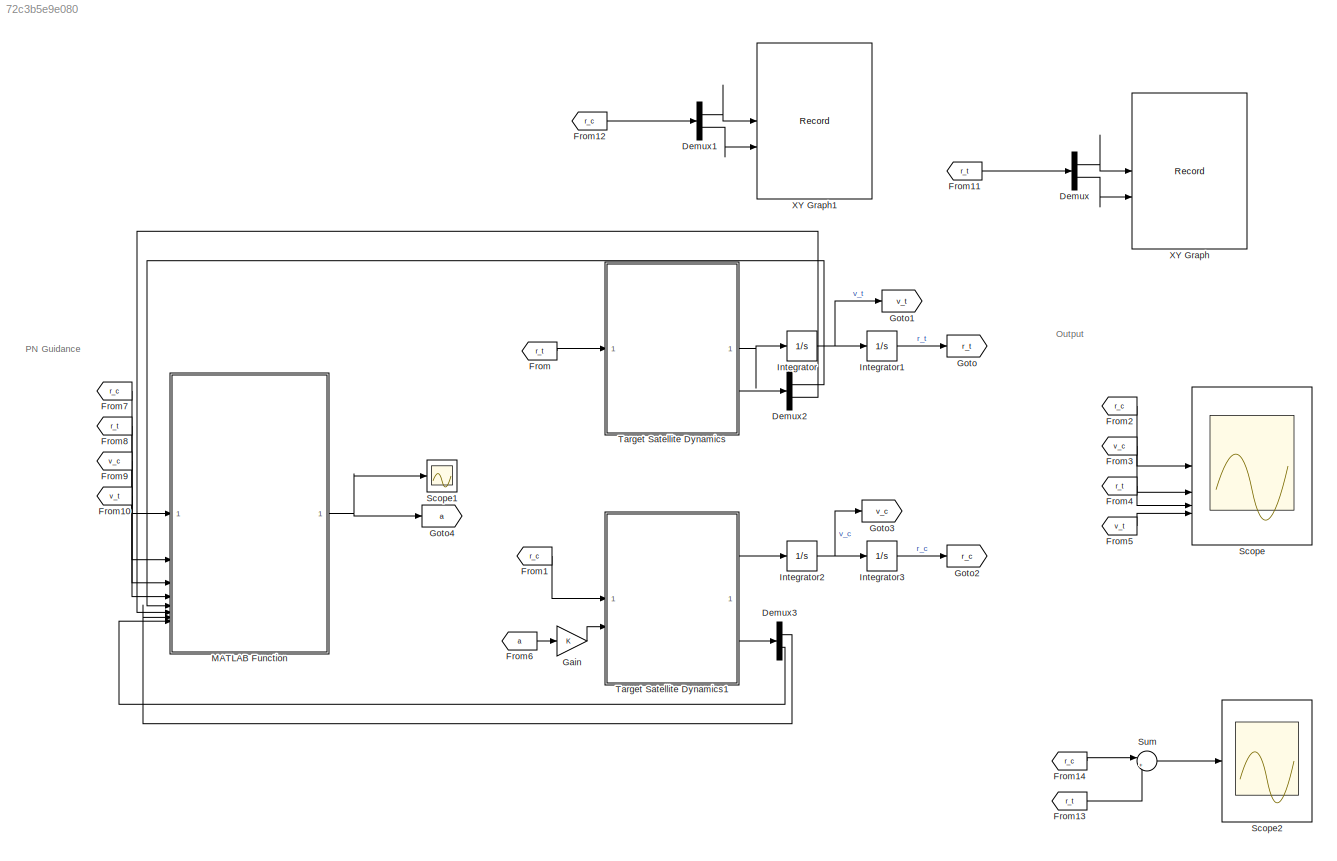
MODEL slx_72c3b5e9e080
KIND model
CONFIG AbsTol = auto
CONFIG EnableMultiTasking = off
CONFIG FixedStep = auto
CONFIG MaxStep = auto
CONFIG MinStep = auto
CONFIG RelTol = 1e-3
CONFIG SampleTimeConstraint = Unconstrained
CONFIG SolverName = VariableStepAuto
CONFIG StartTime = 0.0
CONFIG StopTime = 56.45
BLOCK [Demux] Demux
  Outputs = 2
BLOCK [Demux] Demux1
  Outputs = 2
BLOCK [Demux] Demux2
  Outputs = 2
BLOCK [Demux] Demux3
  Outputs = 2
BLOCK [From] From
  GotoTag = r_t
BLOCK [From] From1
  GotoTag = r_c
BLOCK [From] From10
  GotoTag = v_t
BLOCK [From] From11
  GotoTag = r_t
BLOCK [From] From12
  GotoTag = r_c
BLOCK [From] From13
  GotoTag = r_t
BLOCK [From] From14
  GotoTag = r_c
BLOCK [From] From2
  GotoTag = r_c
BLOCK [From] From3
  GotoTag = v_c
BLOCK [From] From4
  GotoTag = r_t
BLOCK [From] From5
  GotoTag = v_t
BLOCK [From] From6
  GotoTag = a
BLOCK [From] From7
  GotoTag = r_c
BLOCK [From] From8
  GotoTag = r_t
BLOCK [From] From9
  GotoTag = v_c
BLOCK [Gain] Gain
BLOCK [Goto] Goto
  GotoTag = r_t
BLOCK [Goto] Goto1
  GotoTag = v_t
BLOCK [Goto] Goto2
  GotoTag = r_c
BLOCK [Goto] Goto3
  GotoTag = v_c
BLOCK [Goto] Goto4
  GotoTag = a
BLOCK [Integrator] Integrator
  InitialCondition = v_t_0
BLOCK [Integrator] Integrator1
  InitialCondition = r_t_0
BLOCK [Integrator] Integrator2
  InitialCondition = v_c_0
BLOCK [Integrator] Integrator3
  InitialCondition = r_c_0
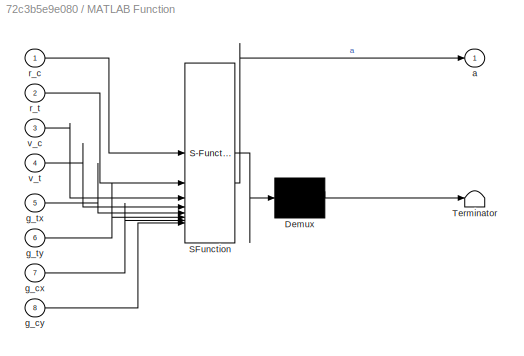
BLOCK [SubSystem] MATLAB Function
  ErrorFcn = Stateflow.Translate.translate
  LibrarySourceBlock = simulink/User-Defined\nFunctions/MATLAB Function
  PermitHierarchicalResolution = ExplicitOnly
  SFBlockType = MATLAB Function
  TreatAsAtomicUnit = on
BLOCK [Demux] MATLAB Function/ Demux 
  Outputs = 1
BLOCK [S-Function] MATLAB Function/ SFunction 
  EnableBusSupport = on
  FunctionName = sf_sfun
  PortCounts = [8 2]
  SFcnIsStateOwnerBlock = off
  SFunctionDeploymentMode = off
  Tag = Stateflow S-Function 3
BLOCK [Terminator] MATLAB Function/ Terminator 
BLOCK [Outport] MATLAB Function/a
BLOCK [Inport] MATLAB Function/g_cx
  Port = 7
BLOCK [Inport] MATLAB Function/g_cy
  Port = 8
BLOCK [Inport] MATLAB Function/g_tx
  Port = 5
BLOCK [Inport] MATLAB Function/g_ty
  Port = 6
BLOCK [Inport] MATLAB Function/r_c
BLOCK [Inport] MATLAB Function/r_t
  Port = 2
BLOCK [Inport] MATLAB Function/v_c
  Port = 3
BLOCK [Inport] MATLAB Function/v_t
  Port = 4
BLOCK [Scope] Scope
  Floating = off
  NumInputPorts = 4
  ScopeSpecificationString = Simulink.scopes.TimeScopeBlockCfg('CurrentConfiguration', extmgr.ConfigurationSet(extmgr.Configuration('Core','General UI',true),extmgr.Configuration('Core','Source UI',true),extmgr.Configuration('Sources','WiredSimulink',true,'DataLoggingSaveFormat','Array','DataLoggingLimitDataPoints',true,'DataLoggingDecimation','1'),extmgr.Configuration('Visuals','Time Domain',true,'SerializedDisplays',{struct...<+3760ch>
BLOCK [Scope] Scope1
  Floating = off
  NumInputPorts = 1
  ScopeSpecificationString = Simulink.scopes.TimeScopeBlockCfg('CurrentConfiguration', extmgr.ConfigurationSet(extmgr.Configuration('Core','General UI',true),extmgr.Configuration('Core','Source UI',true),extmgr.Configuration('Sources','WiredSimulink',true,'DataLoggingVariableName','ScopeData1','DataLoggingSaveFormat','Array','DataLoggingLimitDataPoints',true,'DataLoggingDecimation','1'),extmgr.Configuration('Visuals','Time Do...<+2101ch>
BLOCK [Scope] Scope2
  Floating = off
  NumInputPorts = 1
  ScopeSpecificationString = Simulink.scopes.TimeScopeBlockCfg('CurrentConfiguration', extmgr.ConfigurationSet(extmgr.Configuration('Core','General UI',true),extmgr.Configuration('Core','Source UI',true),extmgr.Configuration('Sources','WiredSimulink',true,'DataLoggingVariableName','ScopeData1','DataLoggingSaveFormat','Array','DataLoggingLimitDataPoints',true,'DataLoggingDecimation','1'),extmgr.Configuration('Visuals','Time Do...<+2097ch>
BLOCK [Sum] Sum
  Inputs = |+-
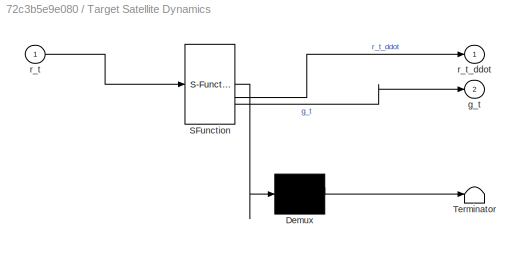
BLOCK [SubSystem] Target Satellite Dynamics
  ErrorFcn = Stateflow.Translate.translate
  LibrarySourceBlock = simulink/User-Defined\nFunctions/MATLAB Function
  PermitHierarchicalResolution = ExplicitOnly
  SFBlockType = MATLAB Function
  TreatAsAtomicUnit = on
BLOCK [Demux] Target Satellite Dynamics/ Demux 
  Outputs = 1
BLOCK [S-Function] Target Satellite Dynamics/ SFunction 
  EnableBusSupport = on
  FunctionName = sf_sfun
  PortCounts = [1 3]
  SFcnIsStateOwnerBlock = off
  SFunctionDeploymentMode = off
  Tag = Stateflow S-Function 2
BLOCK [Terminator] Target Satellite Dynamics/ Terminator 
BLOCK [Outport] Target Satellite Dynamics/g_t
  Port = 2
BLOCK [Inport] Target Satellite Dynamics/r_t
BLOCK [Outport] Target Satellite Dynamics/r_t_ddot
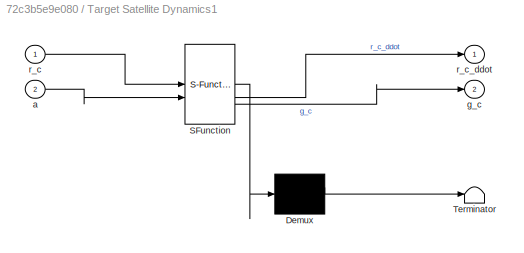
BLOCK [SubSystem] Target Satellite Dynamics1
  ErrorFcn = Stateflow.Translate.translate
  LibrarySourceBlock = simulink/User-Defined\nFunctions/MATLAB Function
  PermitHierarchicalResolution = ExplicitOnly
  SFBlockType = MATLAB Function
  TreatAsAtomicUnit = on
BLOCK [Demux] Target Satellite Dynamics1/ Demux 
  Outputs = 1
BLOCK [S-Function] Target Satellite Dynamics1/ SFunction 
  EnableBusSupport = on
  FunctionName = sf_sfun
  PortCounts = [2 3]
  SFcnIsStateOwnerBlock = off
  SFunctionDeploymentMode = off
  Tag = Stateflow S-Function 1
BLOCK [Terminator] Target Satellite Dynamics1/ Terminator 
BLOCK [Inport] Target Satellite Dynamics1/a
  Port = 2
BLOCK [Outport] Target Satellite Dynamics1/g_c
  Port = 2
BLOCK [Inport] Target Satellite Dynamics1/r_c
BLOCK [Outport] Target Satellite Dynamics1/r_c_ddot
BLOCK [Record] XY Graph
  CompatibilityTag = XY
  FileSettingsInternal = {"entries":[{"content":{"excelSettings":{"content":{},"type":"Streamout.ExcelSettings"}},"type":"Streamout.FileSettingStorage","uuid":"f05f5e47-594b-4ddb-95c8-a519856f57ab"}],"packageUris":["http://schema.mathworks.com/mf0/streamout_blocks/R2020a"],"version":"1.0"}
  Layout = [1 1]
  SignalsInternal = {"entries":[{"content":{"signals":[{"content":{"blockPath":["Docking_algo_with_gravity/XY Graph"],"channel":[],"dimensions":[1,1],"domain":"Docking_algo_with_gravity/XY Graph","lineColor":"#a2142f","plots":[1],"port":1,"sid":[""],"signalID":580,"signalName":"Demux:1"},"type":"RecordBlkView.Signal","uuid":"26e10c53-4dd1-4eee-bc4d-99a411afbdb3"},{"content":{"blockPath":["Docking_algo_with_gravity/XY...<+433ch>
  VisualizationBindings = {"xyplotplugin":{"info":[{"series":[{"bindingParametersList":[{"parameter":"X-Axis","signalID":580,"signalName":"Demux:1"},{"parameter":"Y-Axis","signalID":584,"signalName":"Demux:2"}],"seriesID":62679}],"subplotID":1}]}}
BLOCK [Record] XY Graph1
  CompatibilityTag = XY
  FileSettingsInternal = {"entries":[{"content":{"excelSettings":{"content":{},"type":"Streamout.ExcelSettings"}},"type":"Streamout.FileSettingStorage","uuid":"cdd3edcb-3ea8-46fc-846b-7b8ea4246970"}],"packageUris":["http://schema.mathworks.com/mf0/streamout_blocks/R2020a"],"version":"1.0"}
  Layout = [1 1]
  SignalsInternal = {"entries":[{"content":{"signals":[{"content":{"blockPath":["Docking_algo_with_gravity/XY Graph1"],"channel":[],"dimensions":[1],"domain":"Docking_algo_with_gravity/XY Graph1","lineColor":"#a2142f","plots":[1],"port":1,"sid":[""],"signalID":588,"signalName":"Demux1:1"},"type":"RecordBlkView.Signal","uuid":"d226e68c-dddd-453f-a78d-0a93a4eb89f6"},{"content":{"blockPath":["Docking_algo_with_gravity/X...<+435ch>
  VisualizationBindings = {"xyplotplugin":{"info":[{"series":[{"bindingParametersList":[{"parameter":"X-Axis","signalID":588,"signalName":"Demux1:1"},{"parameter":"Y-Axis","signalID":592,"signalName":"Demux1:2"}],"seriesID":43174}],"subplotID":1}]}}
ANNOTATION (root): Output
ANNOTATION (root): PN Guidance
LINE Demux1:1 -> XY Graph1:1
LINE Demux1:2 -> XY Graph1:2
LINE Demux2:1 -> MATLAB Function:5
LINE Demux2:2 -> MATLAB Function:6
LINE Demux3:1 -> MATLAB Function:7
LINE Demux3:2 -> MATLAB Function:8
LINE Demux:1 -> XY Graph:1
LINE Demux:2 -> XY Graph:2
LINE From10:1 -> MATLAB Function:4
LINE From11:1 -> Demux:1
LINE From12:1 -> Demux1:1
LINE From13:1 -> Sum:2
LINE From14:1 -> Sum:1
LINE From1:1 -> Target Satellite Dynamics1:1
LINE From2:1 -> Scope:1
LINE From3:1 -> Scope:2
LINE From4:1 -> Scope:3
LINE From5:1 -> Scope:4
LINE From6:1 -> Gain:1
LINE From7:1 -> MATLAB Function:1
LINE From8:1 -> MATLAB Function:2
LINE From9:1 -> MATLAB Function:3
LINE From:1 -> Target Satellite Dynamics:1
LINE Gain:1 -> Target Satellite Dynamics1:2
LINE Integrator1:1 -> Goto:1
NET Integrator2:1 -> Goto3:1, Integrator3:1
LINE Integrator3:1 -> Goto2:1
NET Integrator:1 -> Goto1:1, Integrator1:1
NET MATLAB Function:1 -> Goto4:1, Scope1:1
LINE Sum:1 -> Scope2:1
LINE Target Satellite Dynamics1:1 -> Integrator2:1
LINE Target Satellite Dynamics1:2 -> Demux3:1
LINE Target Satellite Dynamics:1 -> Integrator:1
LINE Target Satellite Dynamics:2 -> Demux2:1
note: NET lines group one-source signal fan-out (src -> all destinations, sorted); 1:1 wires keep LINE
CHART Target Satellite Dynamics1 states=1 transitions=1
  STATE_LABEL 'eML_blk_kernel()'
  STATE_LABEL 'SCRIPT:\nfunction [r_c_ddot, g_c] = fcn(r_c, a)\nmyu = 398332400000000;\n\ng_c = -myu*r_c/(norm(r_c)^3);\nr_c_ddot = g_c + a;\n'
CHART Target Satellite Dynamics states=1 transitions=1
  STATE_LABEL 'eML_blk_kernel()'
  STATE_LABEL 'SCRIPT:\nfunction [r_t_ddot, g_t] = fcn(r_t)\nmyu = 398332400000000;\n\ng_t = -myu*r_t/(norm(r_t)^3);\nr_t_ddot = g_t;\n'
CHART MATLAB Function states=1 transitions=1
  STATE_LABEL 'eML_blk_kernel()'
  STATE_LABEL 'SCRIPT:\nfunction a = fcn(r_c, r_t, v_c, v_t, g_tx, g_ty, g_cx, g_cy)\nmyu = 398332400000000;\n\nr = r_c - r_t;\nv = v_c - v_t;\n\nx = r(1);\ny = r(2);\nx_dot = v(1);\ny_dot = v(2);\n\ntheta_dot = (x*y_dot - y*x_dot)/norm(r)^2;\nV_c = -(x*y_dot + y*x_dot)/norm(r);\n\nN = 3; \n\ntheta = atan2(y,x);\n\ng_perp = -g_tx*sin(theta) + g_ty*cos(theta) + g_cx*sin(theta) - g_cy*cos(theta);\n\na = N*V_c*theta_dot*[-sin(theta); c...<+53ch>'
CHART  states=0 transitions=0
CHART  states=0 transitions=0
CHART  states=0 transitions=0
